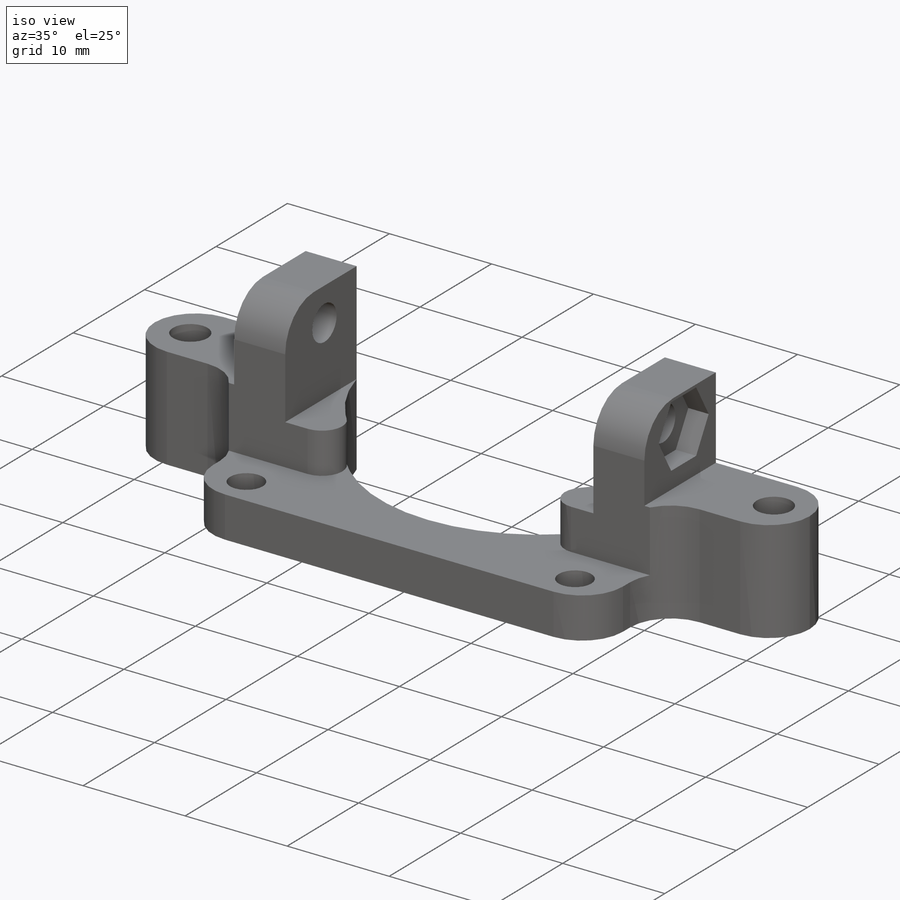
[diagram: iso view]
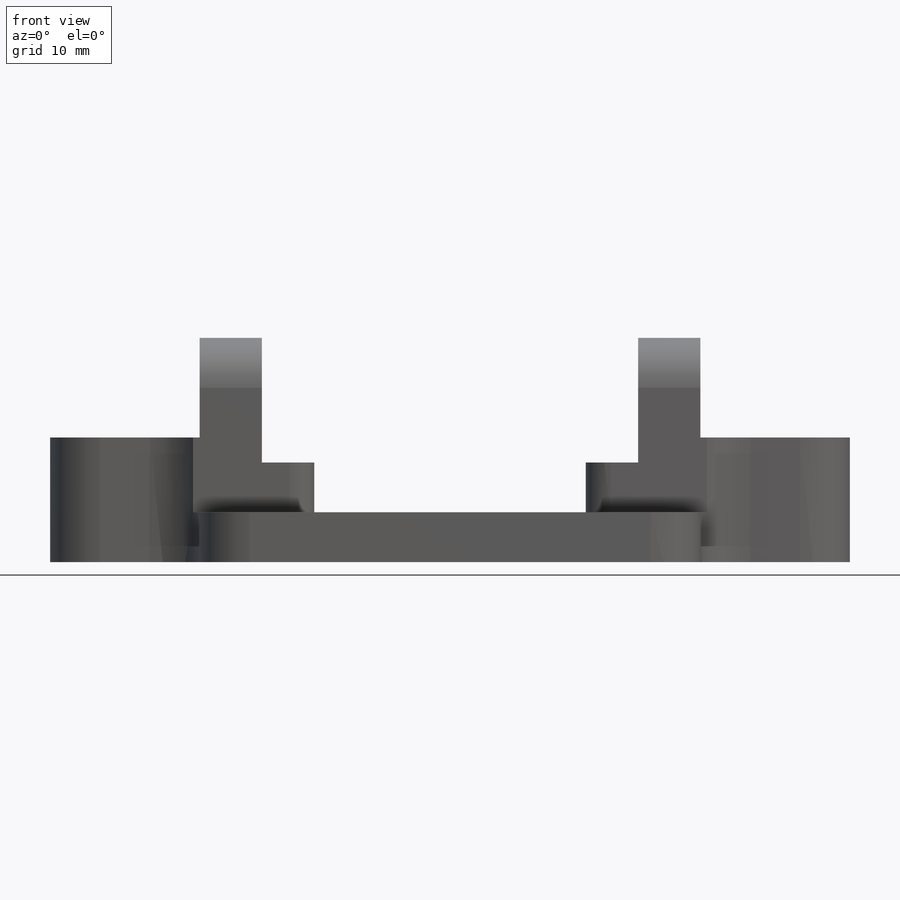
[diagram: front view]
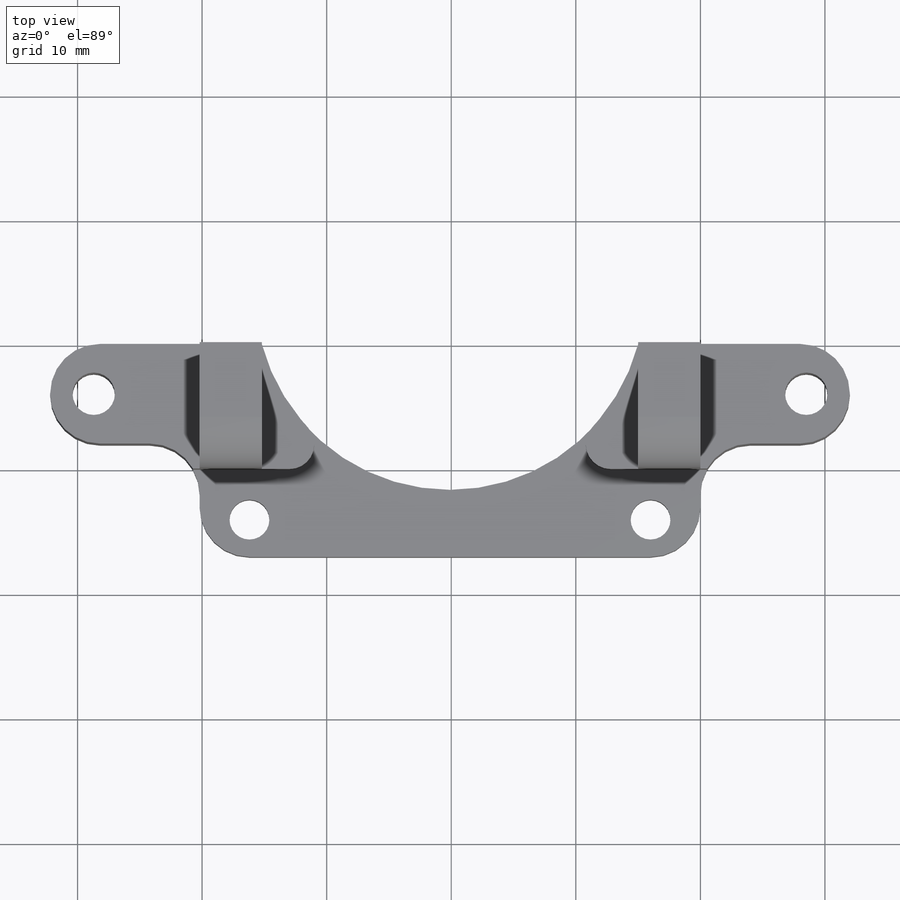
[diagram: top view]
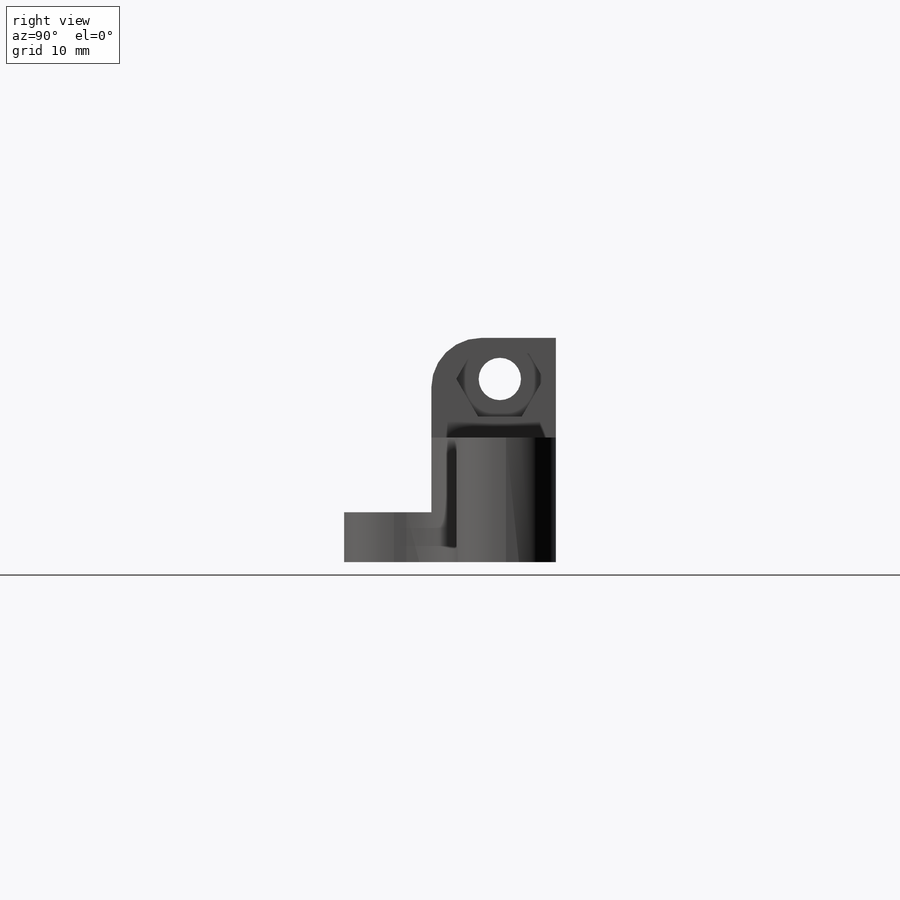
[diagram: right view]
SOLIDWORKS PART (.sldprt)
format: sldprt  version: not decoded by parser v0  size: 356,352 bytes
history: native  units: mm
features: sketch x11, cut_extrude x8, fillet x5, plane x3, extrude x3, material x1 (+8 scaffold rows collapsed)
feature tree (39):
  scaffold x8  (default folders/planes/origin — collapsed)
  material  "Material <not specified>"
  plane  "Plan de face"
  plane  "Plan de dessus"
  plane  "Plan de droite"
  sketch  "Esquisse1"  dims[D1=30.2mm D2=5.0mm D3=5.0mm D4=10.0mm D5=10.0mm D6=8.0mm]
  extrude  "Boss.-Extru.1"  Depth=10mm
  sketch  "Esquisse2"  dims[D1=8.0mm]
  extrude  "Boss.-Extru.2"  Depth=9mm
  sketch  "Esquisse4"  dims[c1.D5=3.2mm c1.D6=3.2mm c1.D1=4.0mm c1.D2=4.0mm c1.D3=4.0mm c1.D4=4.0mm c1.D7=~5.656854mm c2.D3=5.0mm c2.D7=~5.656854mm c2.D8=4.0mm c2.D4=5.0mm]
  cut_extrude  "Enlèv. mat.-Extru.2"  [1 undecoded]
  sketch  "Esquisse5"  dims[D1=2.0mm]
  cut_extrude  "Enlèv. mat.-Extru.3"  [1 undecoded]
  sketch  "Esquisse6"  dims[D1=8.0mm D2=12.0mm D3=8.0mm D4=12.0mm]
  extrude  "Boss.-Extru.3"  Depth=10mm
  sketch  "Esquisse7"  dims[D1=3.4mm D2=3.4mm D3=4.0mm D4=3.5mm D5=4.0mm D6=3.5mm]
  cut_extrude  "Enlèv. mat.-Extru.4"  [1 undecoded]
  fillet  "Congé3"  Radius=4mm
  sketch  "Esquisse8"  dims[D3=3.4mm D1=6.7mm D2=5.5mm]
  cut_extrude  "Enlèv. mat.-Extru.5"  [1 undecoded]
  sketch  "Esquisse9"  dims[D1=6.0mm]
  cut_extrude  "Enlèv. mat.-Extru.6"  Depth=2mm
  sketch  "Esquisse10"  dims[D1=7.0mm]
  cut_extrude  "Enlèv. mat.-Extru.7"  Depth=2mm
  fillet  "Congé4"  Radius=4mm
  fillet  "Congé5"  Radius=4mm
  sketch  "Esquisse11"
  cut_extrude  "Enlèv. mat.-Extru.8"  Depth=4mm
  fillet  "Congé6"  Radius=4mm
  sketch  "Esquisse13"  dims[D1=15.1mm]
  cut_extrude  "Enlèv. mat.-Extru.10"  [1 undecoded]
  fillet  "Congé7"  Radius=2mm
decode coverage: 21 of 27 modeling features carry decoded parameters
note: ~ marks probable driven/reference dimensions
note: 5 parameter values undecoded
summary: no parameter record found for 5 features
note: suppression state not decoded; provenance and decode notes live in map.json
